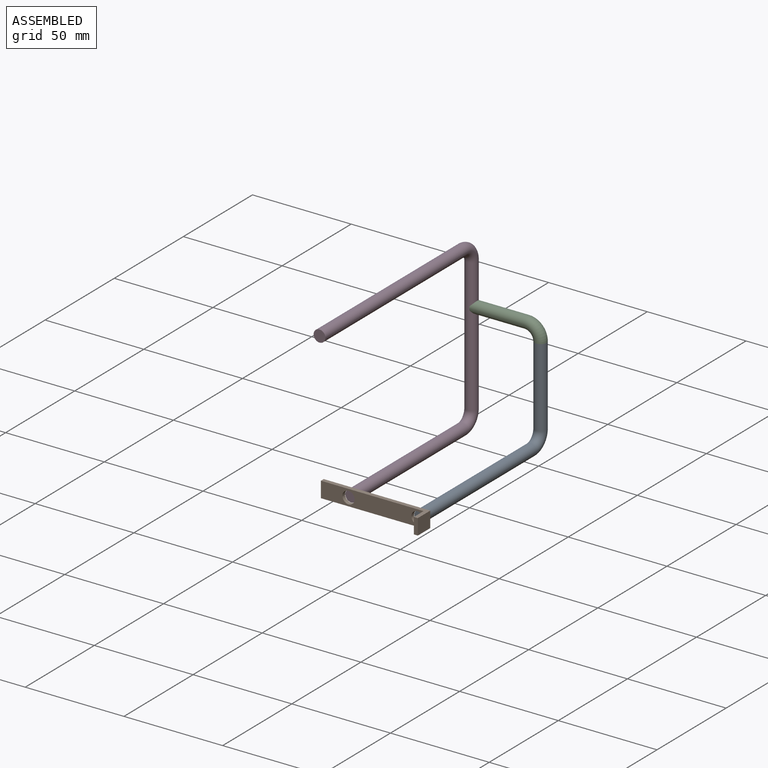
[diagram: assembled view]
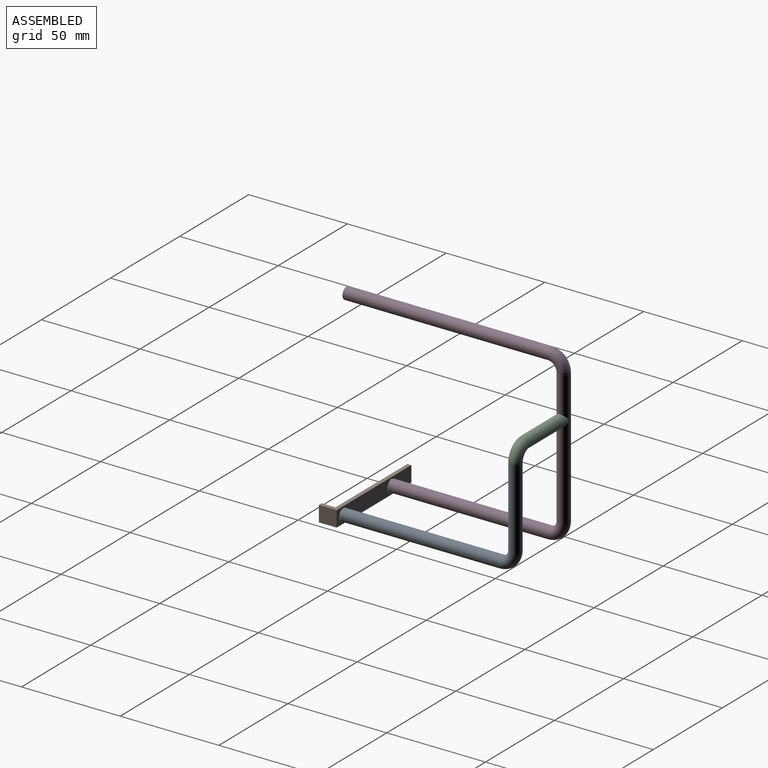
[diagram: assembled view, second angle]
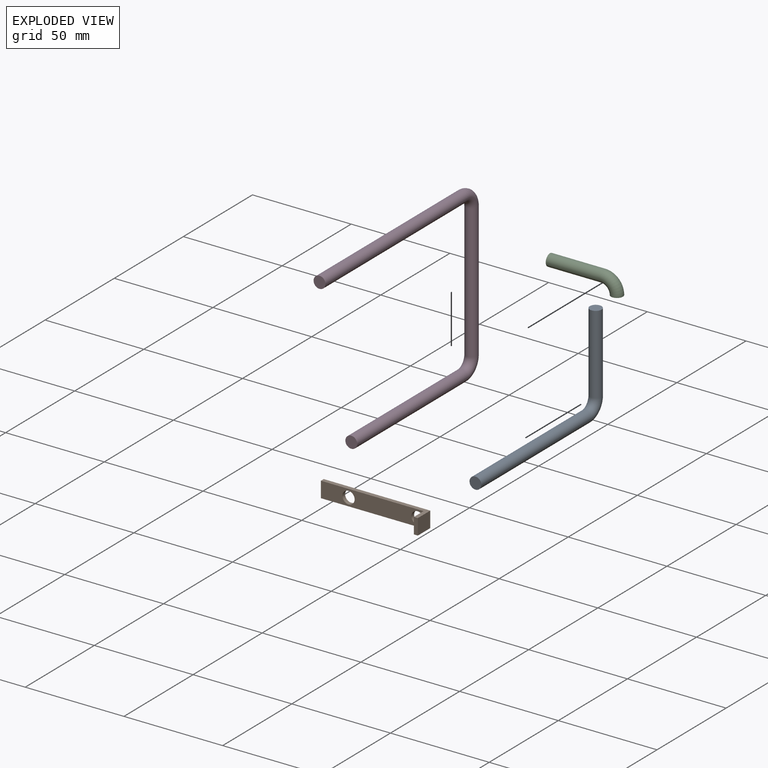
[diagram: exploded view]
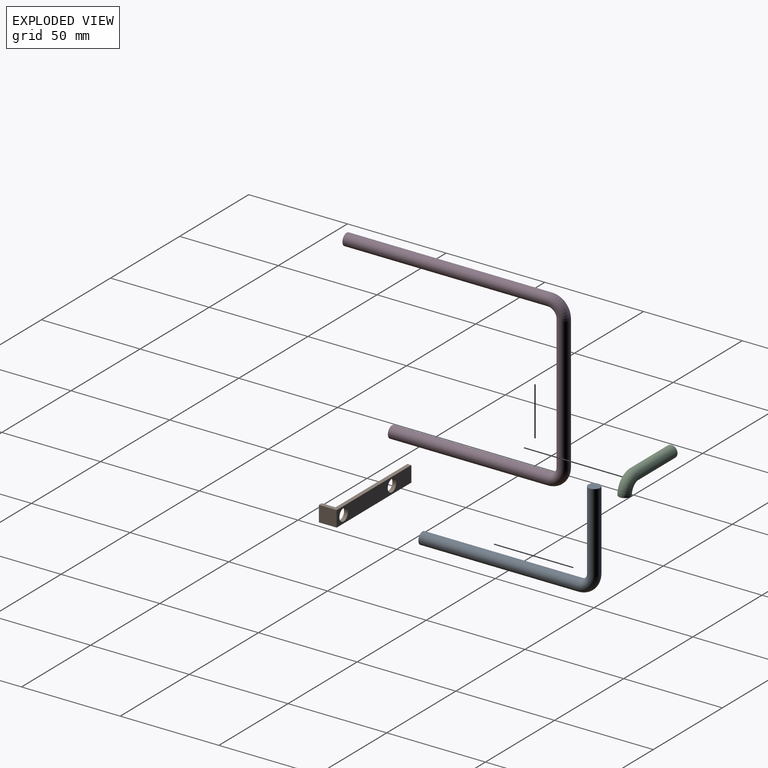
[diagram: exploded view, second angle]
ASSEMBLY  parts=4 mates=3
PART A: 5 faces, bbox 90.8x6x50.8 mm
  f0: plane 6x6mm, normal (-1,0,0), area 28.3mm2, adj f2
  f1: plane 6x6mm, normal (0,0,1), area 28.3mm2, adj f4
  f2: cylinder r=3mm len=80mm, axis (1,0,0), area 1508mm2, adj f0,f3
  f3: torus R=7mm, axis (0,-1,0), area 207.3mm2, adj f2,f4
  f4: cylinder r=3mm len=40mm, axis (0,0,1), area 754mm2, adj f1,f3
PART B: 11 faces, bbox 8x9x54 mm
  f0: plane 7x3.6mm, normal (0,0,-1), area 25.2mm2, adj f1,f3,f7,f9
  f1: plane 52x8mm, normal (0,1,0), area 355.6mm2, adj f0,f2,f6,f7,f8,f9,f10
  f2: plane 7x3.6mm, normal (0,0,-1), area 25.2mm2, adj f1,f3,f8,f9
  f3: plane 8x2mm, normal (0,1,0), area 16mm2, adj f0,f2,f4,f7,f8,f9
  f4: plane 9x8mm, normal (0,0,1), area 72mm2, adj f3,f5,f7,f8
  f5: plane 54x8mm, normal (0,-1,0), area 371.6mm2, adj f4,f6,f7,f8,f9,f10
  f6: plane 8x2mm, normal (0,0,-1), area 16mm2, adj f1,f5,f7,f8
  f7: plane 54x9mm, normal (1,0,0), area 122mm2, adj f0,f1,f3,f4,f5,f6
  f8: plane 54x9mm, normal (-1,0,0), area 122mm2, adj f1,f2,f3,f4,f5,f6
  f9: cylinder r=3.1mm len=9mm, axis (0,-1,0), area 44.5mm2, adj f0,f1,f2,f3,f5
  f10: cylinder r=3.1mm len=6.2mm, axis (0,-1,0), area 39mm2, adj f1,f5
PART C: 4 faces, bbox 37.8x6x10.8 mm
  f0: plane 6x6mm, normal (-1,0,0), area 28.3mm2, adj f2
  f1: plane 6x6mm, normal (0,0,1), area 28.3mm2, adj f3
  f2: cylinder r=3mm len=27mm, axis (1,0,0), area 508.9mm2, adj f0,f3
  f3: torus R=7mm, axis (0,-1,0), area 207.3mm2, adj f1,f2
PART D: 7 faces, bbox 113.8x6x89.6 mm
  f0: plane 6x6mm, normal (-1,0,0), area 28.3mm2, adj f2
  f1: plane 6x6mm, normal (-1,0,0), area 28.3mm2, adj f6
  f2: cylinder r=3mm len=80mm, axis (1,0,0), area 1508mm2, adj f0,f3
  f3: torus R=7mm, axis (0,-1,0), area 207.3mm2, adj f2,f4
  f4: cylinder r=3mm len=68mm, axis (0,0,1), area 1281.8mm2, adj f3,f5
  f5: torus R=7mm, axis (0,-1,0), area 207.3mm2, adj f4,f6
  f6: cylinder r=3mm len=103mm, axis (-1,0,0), area 1941.5mm2, adj f1,f5
PLACE A rot(axis=(0,0,1),90deg) t=(95.87,-79.71,-52.6)mm
PLACE B rot(axis=(-0.71,0,-0.71),180deg) t=(98.94,-81.71,-56.6)mm
PLACE C rot(axis=(-1,0,0),180deg) t=(61.87,7.29,1.4)mm
PLACE D rot(axis=(0,0,1),90deg) t=(60.92,-79.71,-52.6)mm
MATE fastened A.f2 <-> B.f9  axis (0,1,0) through (95.87,-79.71,-52.6)mm
MATE fastened D.f2 <-> B.f10  axis (0,1,0) through (60.92,-79.71,-52.6)mm
MATE fastened C.f1 <-> A.f4  axis (0,0,-1) through (95.87,7.29,-5.6)mm
